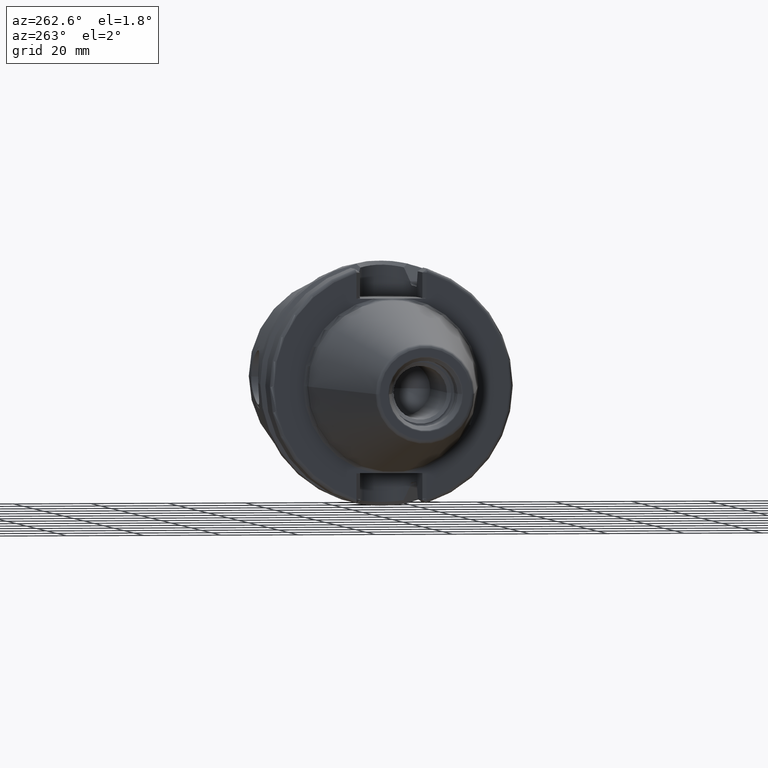
[diagram: clean part render]
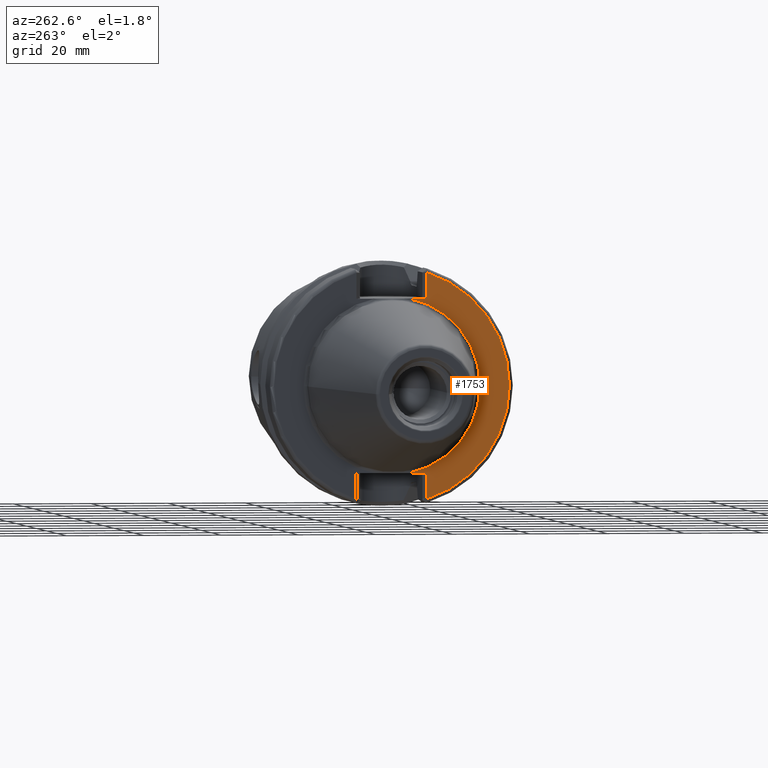
[diagram: same view with one face highlighted and labeled with its STEP entity id]
A machine part, auxiliary view. The second image highlights one B-rep face of the part: STEP entity #1753.
In plain terms, the highlighted planar face has unit normal (1, 0, 0).
Its self-contained STEP definition (entity closure, byte-faithful):
#111=CARTESIAN_POINT('',(2.E0,0.E0,0.E0));
#112=DIRECTION('',(-1.E0,0.E0,0.E0));
#113=DIRECTION('',(0.E0,-1.918678763451E-1,-9.814207650273E-1));
#114=AXIS2_PLACEMENT_3D('',#111,#112,#113);
#135=DIRECTION('',(-2.137863157207E-6,2.138092595446E-6,-9.999999999954E-1));
#136=VECTOR('',#135,6.649288203879E0);
#137=CARTESIAN_POINT('',(2.E0,-9.095E0,-2.245E1));
#138=LINE('',#137,#136);
#139=DIRECTION('',(4.462834027234E-6,-4.463945838797E-6,-9.999999999801E-1));
#140=VECTOR('',#139,6.649296399172E0);
#141=CARTESIAN_POINT('',(1.999970325294E0,-9.094970317901E0,2.909929639904E1));
#142=LINE('',#141,#140);
#597=CARTESIAN_POINT('',(1.999985784732E0,-9.094985783206E0,-2.909928820385E1));
#608=CARTESIAN_POINT('',(2.E0,0.E0,0.E0));
#609=DIRECTION('',(-1.E0,0.E0,0.E0));
#610=DIRECTION('',(0.E0,-2.983190208830E-1,-9.544662182495E-1));
#611=AXIS2_PLACEMENT_3D('',#608,#609,#610);
#684=DIRECTION('',(0.E0,1.E0,0.E0));
#685=VECTOR('',#684,4.706022328605E0);
#686=CARTESIAN_POINT('',(2.E0,-9.095E0,2.245E1));
#687=LINE('',#686,#685);
#725=CARTESIAN_POINT('',(2.E0,0.E0,0.E0));
#726=DIRECTION('',(1.E0,0.E0,0.E0));
#727=DIRECTION('',(0.E0,-1.918678763451E-1,9.814207650273E-1));
#728=AXIS2_PLACEMENT_3D('',#725,#726,#727);
#750=DIRECTION('',(0.E0,-1.E0,0.E0));
#751=VECTOR('',#750,4.706022328605E0);
#752=CARTESIAN_POINT('',(2.E0,-4.388977671395E0,-2.245E1));
#753=LINE('',#752,#751);
#1382=CARTESIAN_POINT('',(2.E0,-2.2875E1,0.E0));
#1384=VERTEX_POINT('',#1382);
#1448=CARTESIAN_POINT('',(2.E0,-4.388977671395E0,2.245E1));
#1449=VERTEX_POINT('',#1448);
#1456=CARTESIAN_POINT('',(2.E0,-4.388977671395E0,-2.245E1));
#1457=VERTEX_POINT('',#1456);
#1486=CARTESIAN_POINT('',(1.999970325294E0,-9.094970317901E0,2.909929639904E1));
#1487=CARTESIAN_POINT('',(2.E0,-9.095E0,2.245E1));
#1488=VERTEX_POINT('',#1486);
#1489=VERTEX_POINT('',#1487);
#1511=VERTEX_POINT('',#597);
#1513=CARTESIAN_POINT('',(2.E0,-9.095E0,-2.245E1));
#1514=VERTEX_POINT('',#1513);
#1733=CARTESIAN_POINT('',(2.E0,0.E0,0.E0));
#1734=DIRECTION('',(1.E0,0.E0,0.E0));
#1735=DIRECTION('',(0.E0,-1.E0,0.E0));
#1736=AXIS2_PLACEMENT_3D('',#1733,#1734,#1735);
#1737=PLANE('',#1736);
#1739=ORIENTED_EDGE('',*,*,#1738,.F.);
#1741=ORIENTED_EDGE('',*,*,#1740,.F.);
#1742=ORIENTED_EDGE('',*,*,#1705,.T.);
#1744=ORIENTED_EDGE('',*,*,#1743,.F.);
#1746=ORIENTED_EDGE('',*,*,#1745,.F.);
#1748=ORIENTED_EDGE('',*,*,#1747,.F.);
#1750=ORIENTED_EDGE('',*,*,#1749,.F.);
#1751=EDGE_LOOP('',(#1739,#1741,#1742,#1744,#1746,#1748,#1750));
#1752=FACE_OUTER_BOUND('',#1751,.F.);
#1753=ADVANCED_FACE('',(#1752),#1737,.F.);
#115=CIRCLE('',#114,2.2875E1);
#612=CIRCLE('',#611,3.04875E1);
#729=CIRCLE('',#728,2.2875E1);
#1705=EDGE_CURVE('',#1457,#1384,#115,.T.);
#1738=EDGE_CURVE('',#1514,#1511,#138,.T.);
#1740=EDGE_CURVE('',#1457,#1514,#753,.T.);
#1743=EDGE_CURVE('',#1449,#1384,#729,.T.);
#1745=EDGE_CURVE('',#1489,#1449,#687,.T.);
#1747=EDGE_CURVE('',#1488,#1489,#142,.T.);
#1749=EDGE_CURVE('',#1511,#1488,#612,.T.);